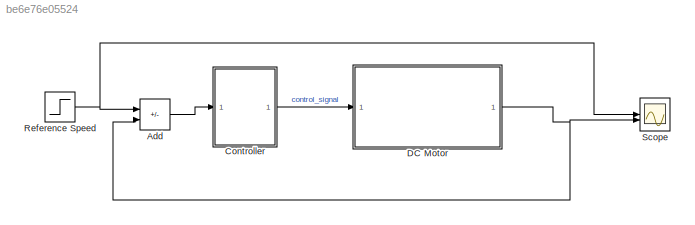
MODEL slx_be6e76e05524
KIND model
CONFIG AbsTol = auto
CONFIG EnableMultiTasking = off
CONFIG FixedStep = auto
CONFIG InitFcn = B = 0.028;\nK = 0.05;\nL = 0.1;\nR = 0.25; \nJ =  3.37e-5;
CONFIG MaxStep = auto
CONFIG MinStep = auto
CONFIG RelTol = 1e-3
CONFIG SampleTimeConstraint = Unconstrained
CONFIG SolverName = VariableStepAuto
CONFIG StartTime = 0.0
CONFIG StopTime = 10.0
BLOCK [Sum] Add
  IconShape = rectangular
  Inputs = +-
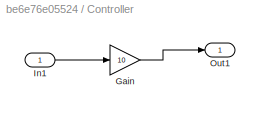
BLOCK [SubSystem] Controller
BLOCK [Gain] Controller/Gain
  Gain = 10
BLOCK [Inport] Controller/In1
BLOCK [Outport] Controller/Out1
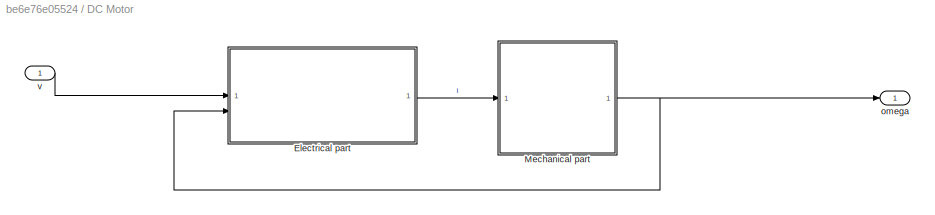
BLOCK [SubSystem] DC Motor
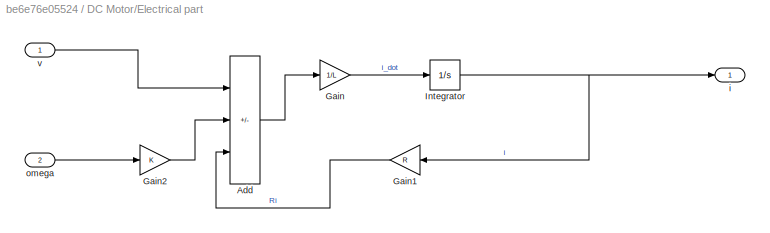
BLOCK [SubSystem] DC Motor/Electrical part 
BLOCK [Sum] DC Motor/Electrical part /Add
  IconShape = rectangular
  Inputs = +--
BLOCK [Gain] DC Motor/Electrical part /Gain
  Gain = 1/L
BLOCK [Gain] DC Motor/Electrical part /Gain1
  Gain = R
  NameLocation = top
BLOCK [Gain] DC Motor/Electrical part /Gain2
  Gain = K
BLOCK [Integrator] DC Motor/Electrical part /Integrator
BLOCK [Outport] DC Motor/Electrical part /i
BLOCK [Inport] DC Motor/Electrical part /omega
  Port = 2
BLOCK [Inport] DC Motor/Electrical part /v
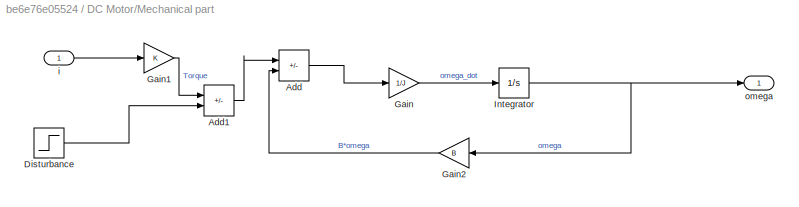
BLOCK [SubSystem] DC Motor/Mechanical part
BLOCK [Sum] DC Motor/Mechanical part/Add
  IconShape = rectangular
  Inputs = +-
BLOCK [Sum] DC Motor/Mechanical part/Add1
  IconShape = rectangular
  Inputs = +-
BLOCK [Step] DC Motor/Mechanical part/Disturbance
  After = 0.1
  SampleTime = 0
  Time = 2
BLOCK [Gain] DC Motor/Mechanical part/Gain
  Gain = 1/J
BLOCK [Gain] DC Motor/Mechanical part/Gain1
  Gain = K
BLOCK [Gain] DC Motor/Mechanical part/Gain2
  Gain = B
  NameLocation = top
BLOCK [Integrator] DC Motor/Mechanical part/Integrator
BLOCK [Inport] DC Motor/Mechanical part/i
BLOCK [Outport] DC Motor/Mechanical part/omega
BLOCK [Outport] DC Motor/omega
BLOCK [Inport] DC Motor/v
BLOCK [Step] Reference Speed
  SampleTime = 0
BLOCK [Scope] Scope
  Floating = off
  NumInputPorts = 2
  ScopeSpecificationString = Simulink.scopes.TimeScopeBlockCfg('CurrentConfiguration', extmgr.ConfigurationSet(extmgr.Configuration('Core','General UI',true),extmgr.Configuration('Core','Source UI',true),extmgr.Configuration('Sources','WiredSimulink',true),extmgr.Configuration('Visuals','Time Domain',true,'SerializedDisplays',{struct('MinYLimReal','-2.04807','MaxYLimReal','1.33867','YLabelReal','','MinYLimMag','0.00000','MaxY...<+1373ch>
LINE Add:1 -> Controller:1
LINE Controller/Gain:1 -> Controller/Out1:1
LINE Controller/In1:1 -> Controller/Gain:1
LINE Controller:1 -> DC Motor:1
LINE DC Motor/Electrical part /Add:1 -> DC Motor/Electrical part /Gain:1
LINE DC Motor/Electrical part /Gain1:1 -> DC Motor/Electrical part /Add:3
LINE DC Motor/Electrical part /Gain2:1 -> DC Motor/Electrical part /Add:2
LINE DC Motor/Electrical part /Gain:1 -> DC Motor/Electrical part /Integrator:1
NET DC Motor/Electrical part /Integrator:1 -> DC Motor/Electrical part /Gain1:1, DC Motor/Electrical part /i:1
LINE DC Motor/Electrical part /omega:1 -> DC Motor/Electrical part /Gain2:1
LINE DC Motor/Electrical part /v:1 -> DC Motor/Electrical part /Add:1
LINE DC Motor/Electrical part :1 -> DC Motor/Mechanical part:1
LINE DC Motor/Mechanical part/Add1:1 -> DC Motor/Mechanical part/Add:1
LINE DC Motor/Mechanical part/Add:1 -> DC Motor/Mechanical part/Gain:1
LINE DC Motor/Mechanical part/Disturbance:1 -> DC Motor/Mechanical part/Add1:2
LINE DC Motor/Mechanical part/Gain1:1 -> DC Motor/Mechanical part/Add1:1
LINE DC Motor/Mechanical part/Gain2:1 -> DC Motor/Mechanical part/Add:2
LINE DC Motor/Mechanical part/Gain:1 -> DC Motor/Mechanical part/Integrator:1
NET DC Motor/Mechanical part/Integrator:1 -> DC Motor/Mechanical part/Gain2:1, DC Motor/Mechanical part/omega:1
LINE DC Motor/Mechanical part/i:1 -> DC Motor/Mechanical part/Gain1:1
NET DC Motor/Mechanical part:1 -> DC Motor/Electrical part :2, DC Motor/omega:1
LINE DC Motor/v:1 -> DC Motor/Electrical part :1
NET DC Motor:1 -> Add:2, Scope:2
NET Reference Speed:1 -> Add:1, Scope:1
note: NET lines group one-source signal fan-out (src -> all destinations, sorted); 1:1 wires keep LINE
